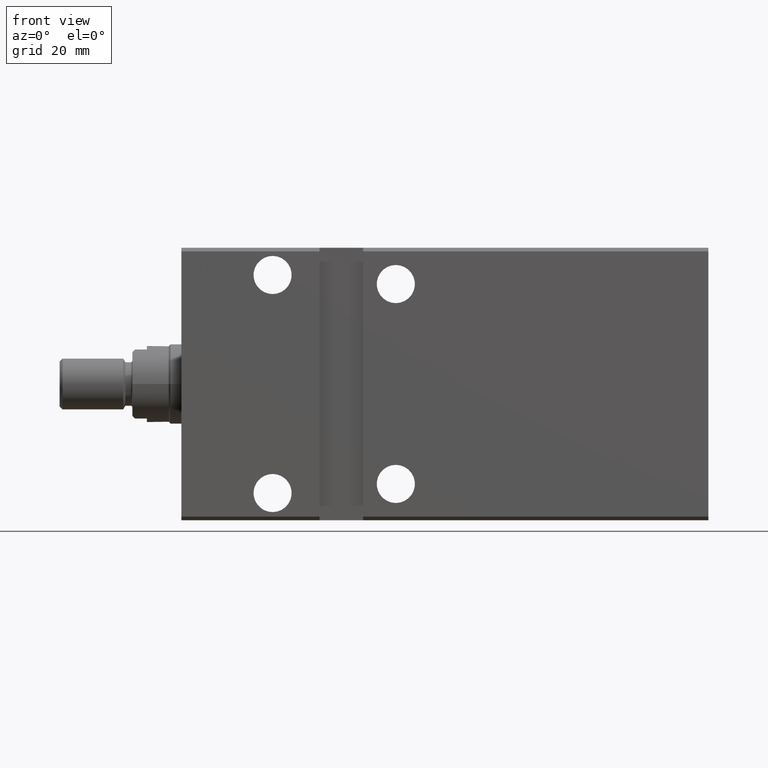
[diagram: clean part render]
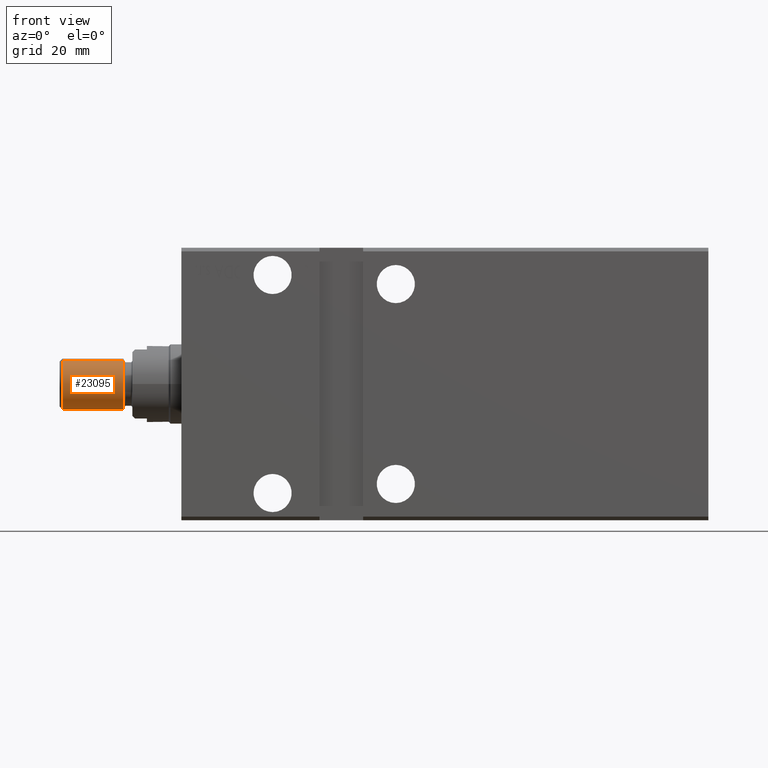
[diagram: same view with one face highlighted and labeled with its STEP entity id]
A machine part, front view. The second image highlights one B-rep face of the part: STEP entity #23095.
In plain terms, the highlighted cylindrical surface (edge-blend (fillet) strip) has radius 7 mm, axis along (1, -0, 0).
Its self-contained STEP definition (entity closure, byte-faithful):
#999 = LINE ( 'NONE', #13519, #25052 ) ;
#1077 = ORIENTED_EDGE ( 'NONE', *, *, #10805, .F. ) ;
#2594 = DIRECTION ( 'NONE',  ( -2.775557561562891967E-17, -1.000000000000000000, 0.000000000000000000 ) ) ;
#2661 = VERTEX_POINT ( 'NONE', #13305 ) ;
#3924 = LINE ( 'NONE', #4125, #25707 ) ;
#4125 = CARTESIAN_POINT ( 'NONE',  ( -1.942890293093935445E-16, -6.999999999999679368, 0.000000000000000000 ) ) ;
#4934 = CARTESIAN_POINT ( 'NONE',  ( 2.500000000000419220, -6.999999999999685585, 8.572527594031086648E-16 ) ) ;
#7061 = DIRECTION ( 'NONE',  ( -1.000000000000000000, 2.775557561562891967E-17, -0.000000000000000000 ) ) ;
#8986 = AXIS2_PLACEMENT_3D ( 'NONE', #11721, #21413, #33736 ) ;
#9064 = CARTESIAN_POINT ( 'NONE',  ( 0.000000000000000000, 0.000000000000000000, 0.000000000000000000 ) ) ;
#10781 = CARTESIAN_POINT ( 'NONE',  ( 19.20000000000041851, -6.999999999999674039, 0.000000000000000000 ) ) ;
#10805 = EDGE_CURVE ( 'NONE', #11066, #38996, #3924, .T. ) ;
#11066 = VERTEX_POINT ( 'NONE', #10781 ) ;
#11531 = EDGE_CURVE ( 'NONE', #11066, #2661, #16697, .T. ) ;
#11721 = CARTESIAN_POINT ( 'NONE',  ( 19.20000000000041851, -5.329070518200868540E-16, 0.000000000000000000 ) ) ;
#12790 = EDGE_CURVE ( 'NONE', #38996, #16206, #28996, .T. ) ;
#13305 = CARTESIAN_POINT ( 'NONE',  ( 19.20000000000041851, 6.999999999999672262, 8.572527594031076787E-16 ) ) ;
#13519 = CARTESIAN_POINT ( 'NONE',  ( 1.942890293093935445E-16, 6.999999999999679368, 8.572527594031079745E-16 ) ) ;
#14500 = CYLINDRICAL_SURFACE ( 'NONE', #34482, 6.999999999999679368 ) ;
#14902 = DIRECTION ( 'NONE',  ( -1.000000000000000000, 2.775557561562891967E-17, -0.000000000000000000 ) ) ;
#15899 = ORIENTED_EDGE ( 'NONE', *, *, #36602, .T. ) ;
#16206 = VERTEX_POINT ( 'NONE', #28491 ) ;
#16697 = CIRCLE ( 'NONE', #8986, 6.999999999999673150 ) ;
#19020 = ORIENTED_EDGE ( 'NONE', *, *, #11531, .T. ) ;
#21175 = DIRECTION ( 'NONE',  ( 0.000000000000000000, -1.000000000000000000, 0.000000000000000000 ) ) ;
#21413 = DIRECTION ( 'NONE',  ( -1.000000000000000000, 2.775557561562891967E-17, -0.000000000000000000 ) ) ;
#21572 = CARTESIAN_POINT ( 'NONE',  ( 2.500000000000419220, -6.938893903908393180E-17, 0.000000000000000000 ) ) ;
#22093 = DIRECTION ( 'NONE',  ( -1.000000000000000000, 2.775557561562891967E-17, -0.000000000000000000 ) ) ;
#23095 = ADVANCED_FACE ( 'NONE', ( #30260 ), #14500, .T. ) ;
#25052 = VECTOR ( 'NONE', #7061, 1000.000000000000000 ) ;
#25707 = VECTOR ( 'NONE', #22093, 1000.000000000000000 ) ;
#27658 = DIRECTION ( 'NONE',  ( -1.000000000000000000, 2.775557561562891967E-17, -0.000000000000000000 ) ) ;
#28491 = CARTESIAN_POINT ( 'NONE',  ( 2.500000000000419220, 6.999999999999685585, 0.000000000000000000 ) ) ;
#28996 = CIRCLE ( 'NONE', #30286, 6.999999999999685585 ) ;
#30260 = FACE_OUTER_BOUND ( 'NONE', #30826, .T. ) ;
#30286 = AXIS2_PLACEMENT_3D ( 'NONE', #21572, #27658, #21175 ) ;
#30826 = EDGE_LOOP ( 'NONE', ( #19020, #15899, #37964, #1077 ) ) ;
#33736 = DIRECTION ( 'NONE',  ( 0.000000000000000000, -1.000000000000000000, 0.000000000000000000 ) ) ;
#34482 = AXIS2_PLACEMENT_3D ( 'NONE', #9064, #14902, #2594 ) ;
#36602 = EDGE_CURVE ( 'NONE', #2661, #16206, #999, .T. ) ;
#37964 = ORIENTED_EDGE ( 'NONE', *, *, #12790, .F. ) ;
#38996 = VERTEX_POINT ( 'NONE', #4934 ) ;